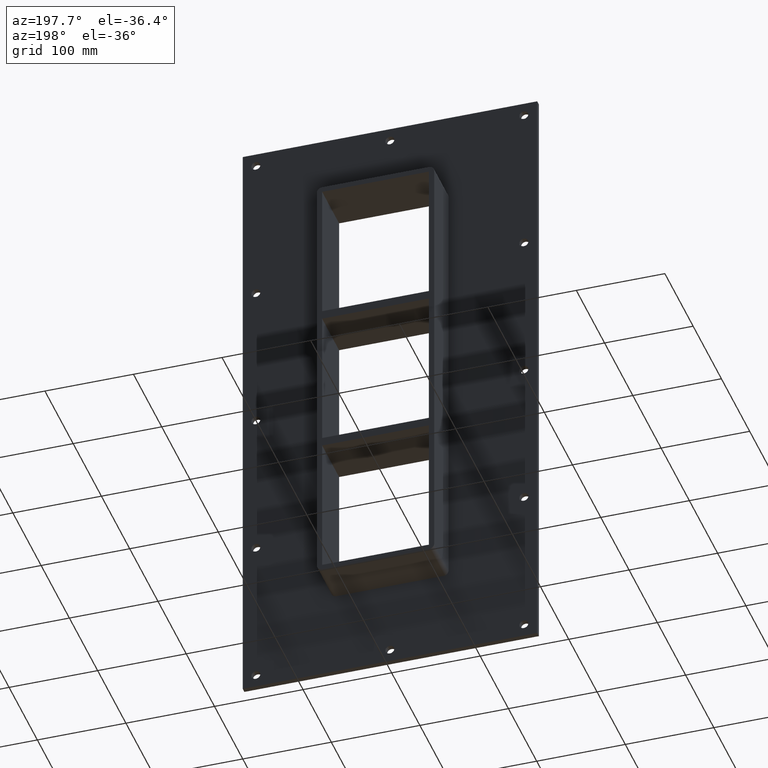
[diagram: clean part render]
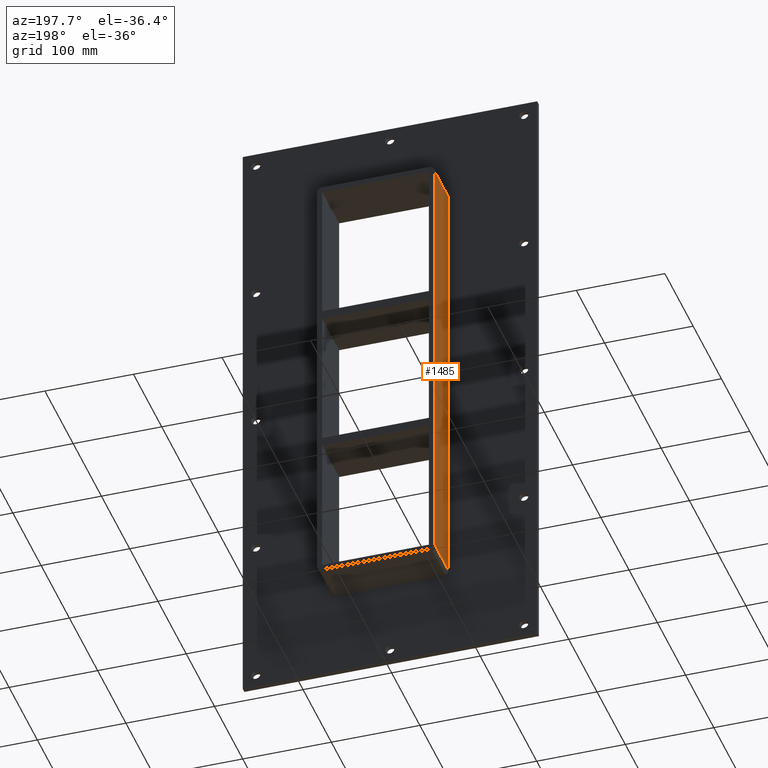
[diagram: same view with one face highlighted and labeled with its STEP entity id]
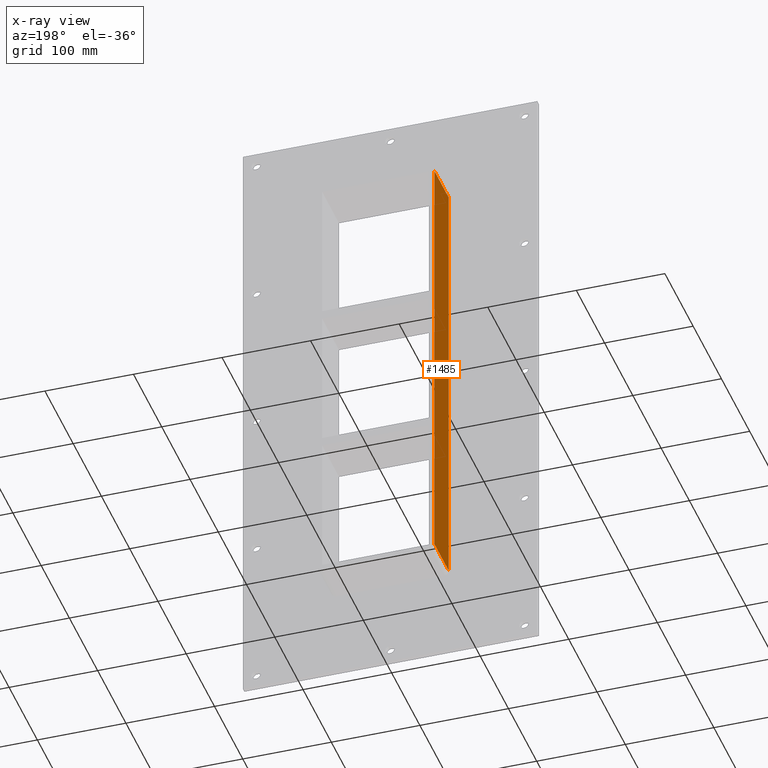
[diagram: x-ray of the same camera — body ghosted, the highlighted face saturated]
A machine part, auxiliary view. The second image highlights one B-rep face of the part: STEP entity #1485.
The next image is the same camera in x-ray: the body ghosted, the highlighted face saturated — about 0% of this face is hidden behind the body in this view.
In plain terms, the highlighted planar face has unit normal (-1, 0, 0).
Its self-contained STEP definition (entity closure, byte-faithful):
#778=CARTESIAN_POINT('',(-66.25,6.000000000000001,-249.25));
#779=VERTEX_POINT('',#778);
#829=CARTESIAN_POINT('',(-66.25,6.000000000000001,249.25));
#830=VERTEX_POINT('',#829);
#838=CARTESIAN_POINT('',(-66.25,6.000000000000001,-249.25));
#839=DIRECTION('',(0.0,0.0,1.0));
#840=VECTOR('',#839,498.5);
#841=LINE('',#838,#840);
#842=EDGE_CURVE('',#779,#830,#841,.T.);
#1443=CARTESIAN_POINT('',(-66.25,57.0,-249.25));
#1444=VERTEX_POINT('',#1443);
#1445=CARTESIAN_POINT('',(-66.25,6.000000000000001,-249.25));
#1446=DIRECTION('',(0.0,1.0,0.0));
#1447=VECTOR('',#1446,51.0);
#1448=LINE('',#1445,#1447);
#1449=EDGE_CURVE('',#779,#1444,#1448,.T.);
#1462=CARTESIAN_POINT('',(-66.25,0.0,-255.25000000000003));
#1463=DIRECTION('',(-1.0,0.0,0.0));
#1464=DIRECTION('',(0.0,0.0,1.0));
#1465=AXIS2_PLACEMENT_3D('',#1462,#1463,#1464);
#1466=PLANE('',#1465);
#1467=ORIENTED_EDGE('',*,*,#842,.T.);
#1468=CARTESIAN_POINT('',(-66.25,57.0,249.25));
#1469=VERTEX_POINT('',#1468);
#1470=CARTESIAN_POINT('',(-66.25,57.0,249.25));
#1471=DIRECTION('',(0.0,-1.0,0.0));
#1472=VECTOR('',#1471,51.0);
#1473=LINE('',#1470,#1472);
#1474=EDGE_CURVE('',#1469,#830,#1473,.T.);
#1475=ORIENTED_EDGE('',*,*,#1474,.F.);
#1476=CARTESIAN_POINT('',(-66.25,57.0,-249.25));
#1477=DIRECTION('',(0.0,0.0,1.0));
#1478=VECTOR('',#1477,498.5);
#1479=LINE('',#1476,#1478);
#1480=EDGE_CURVE('',#1444,#1469,#1479,.T.);
#1481=ORIENTED_EDGE('',*,*,#1480,.F.);
#1482=ORIENTED_EDGE('',*,*,#1449,.F.);
#1483=EDGE_LOOP('',(#1467,#1475,#1481,#1482));
#1484=FACE_OUTER_BOUND('',#1483,.T.);
#1485=ADVANCED_FACE('',(#1484),#1466,.T.);